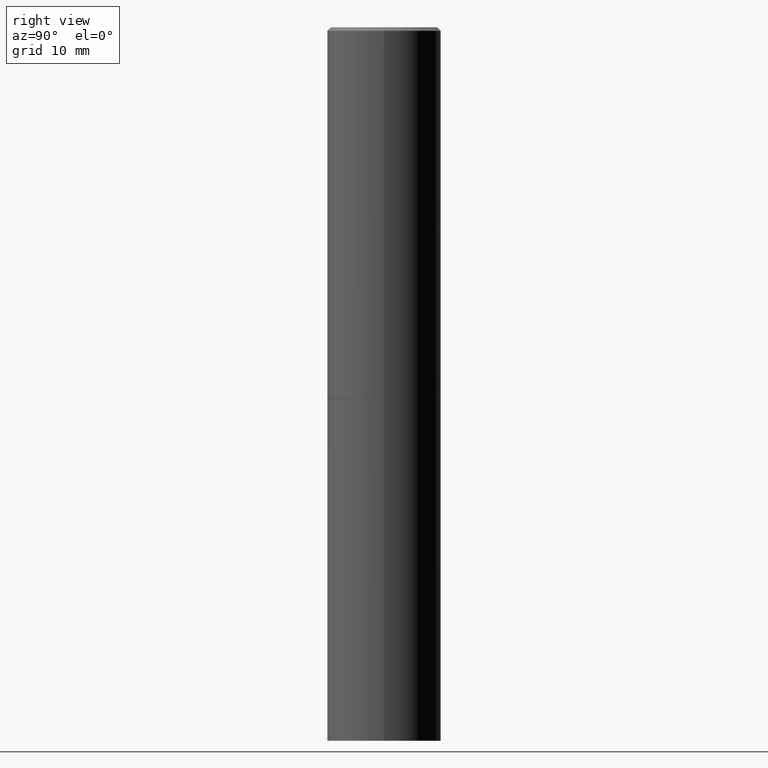
[diagram: clean part render]
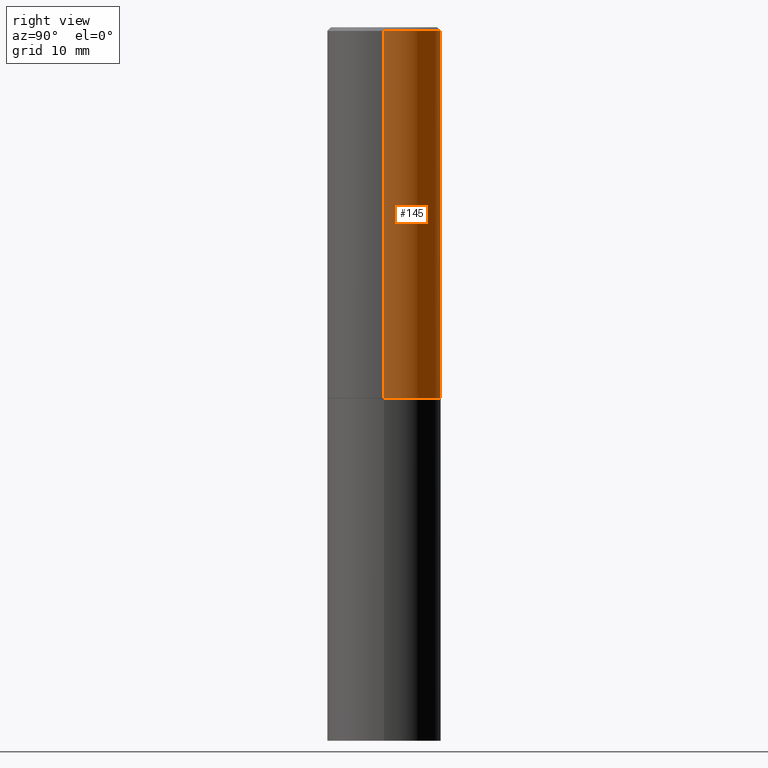
[diagram: same view with one face highlighted and labeled with its STEP entity id]
A machine part, right view. The second image highlights one B-rep face of the part: STEP entity #145.
In plain terms, the highlighted cylindrical surface (partial cylindrical patch) has radius 7.9997 mm, axis along (-0, 0, 1).
Its self-contained STEP definition (entity closure, byte-faithful):
#9 = LINE ( 'NONE', #352, #198 ) ;
#13 = CARTESIAN_POINT ( 'NONE',  ( -0.3149500000000000077, -1.369195024882416092E-15, -2.046199999999999797 ) ) ;
#37 = VERTEX_POINT ( 'NONE', #239 ) ;
#41 = EDGE_CURVE ( 'NONE', #37, #181, #272, .T. ) ;
#47 = CARTESIAN_POINT ( 'NONE',  ( 0.3149499999999998967, -2.199284095337288688E-15, 1.535751875536929289E-29 ) ) ;
#52 = VERTEX_POINT ( 'NONE', #271 ) ;
#54 = DIRECTION ( 'NONE',  ( -2.445468806185136597E-29, 3.491481338843145583E-15, 1.000000000000000000 ) ) ;
#71 = VERTEX_POINT ( 'NONE', #13 ) ;
#93 = AXIS2_PLACEMENT_3D ( 'NONE', #194, #54, #278 ) ;
#102 = ORIENTED_EDGE ( 'NONE', *, *, #256, .T. ) ;
#111 = EDGE_CURVE ( 'NONE', #181, #52, #317, .T. ) ;
#113 = AXIS2_PLACEMENT_3D ( 'NONE', #213, #299, #261 ) ;
#123 = CIRCLE ( 'NONE', #113, 0.3149500000000000077 ) ;
#127 = ORIENTED_EDGE ( 'NONE', *, *, #41, .F. ) ;
#130 = ORIENTED_EDGE ( 'NONE', *, *, #331, .T. ) ;
#134 = DIRECTION ( 'NONE',  ( -2.445468806185136877E-29, 3.491481338843145188E-15, 1.000000000000000000 ) ) ;
#137 = CARTESIAN_POINT ( 'NONE',  ( 0.3149499999999997302, -2.230543471175005478E-15, -0.02000000000000006981 ) ) ;
#145 = ADVANCED_FACE ( 'NONE', ( #365 ), #363, .T. ) ;
#181 = VERTEX_POINT ( 'NONE', #137 ) ;
#188 = DIRECTION ( 'NONE',  ( -2.445468806185136877E-29, 3.491481338843145188E-15, 1.000000000000000000 ) ) ;
#194 = CARTESIAN_POINT ( 'NONE',  ( 4.890937612370289799E-31, -6.982962677686315028E-17, -0.02000000000000006981 ) ) ;
#198 = VECTOR ( 'NONE', #188, 39.37007874015748143 ) ;
#201 = DIRECTION ( 'NONE',  ( 1.000000000000000000, -6.982962677686265922E-15, 4.876176775795935232E-29 ) ) ;
#213 = CARTESIAN_POINT ( 'NONE',  ( 5.003918271216025517E-29, -7.144269115540843617E-15, -2.046199999999999797 ) ) ;
#225 = DIRECTION ( 'NONE',  ( -2.445468806185136597E-29, 3.491481338843145583E-15, 1.000000000000000000 ) ) ;
#239 = CARTESIAN_POINT ( 'NONE',  ( 0.3149500000000000077, -9.343553210878133488E-15, -2.046199999999999797 ) ) ;
#251 = ORIENTED_EDGE ( 'NONE', *, *, #111, .F. ) ;
#256 = EDGE_CURVE ( 'NONE', #71, #52, #9, .T. ) ;
#261 = DIRECTION ( 'NONE',  ( 1.000000000000000000, -6.982962677686266711E-15, 0.000000000000000000 ) ) ;
#271 = CARTESIAN_POINT ( 'NONE',  ( -0.3149499999999997302, 2.129454468560424601E-15, -0.02000000000000006981 ) ) ;
#272 = LINE ( 'NONE', #47, #275 ) ;
#275 = VECTOR ( 'NONE', #134, 39.37007874015748143 ) ;
#278 = DIRECTION ( 'NONE',  ( 1.000000000000000000, -6.982962677686266711E-15, 0.000000000000000000 ) ) ;
#280 = CARTESIAN_POINT ( 'NONE',  ( 0.000000000000000000, 0.000000000000000000, 0.000000000000000000 ) ) ;
#299 = DIRECTION ( 'NONE',  ( -2.445468806185136597E-29, 3.491481338843145583E-15, 1.000000000000000000 ) ) ;
#302 = AXIS2_PLACEMENT_3D ( 'NONE', #280, #225, #201 ) ;
#317 = CIRCLE ( 'NONE', #93, 0.3149499999999997302 ) ;
#331 = EDGE_CURVE ( 'NONE', #37, #71, #123, .T. ) ;
#352 = CARTESIAN_POINT ( 'NONE',  ( -0.3149499999999998967, 2.237854346276434801E-15, -1.549218606675782116E-29 ) ) ;
#356 = EDGE_LOOP ( 'NONE', ( #130, #102, #251, #127 ) ) ;
#363 = CYLINDRICAL_SURFACE ( 'NONE', #302, 0.3149499999999998967 ) ;
#365 = FACE_OUTER_BOUND ( 'NONE', #356, .T. ) ;